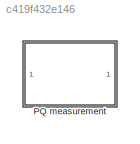
MODEL slx_c419f432e146
KIND model
CONFIG AbsTol = auto
CONFIG EnableMultiTasking = off
CONFIG FixedStep = auto
CONFIG MaxStep = auto
CONFIG MinStep = auto
CONFIG RelTol = 1e-3
CONFIG SampleTimeConstraint = Unconstrained
CONFIG SolverName = VariableStepAuto
CONFIG StartTime = 0.0
CONFIG StopTime = 10.0
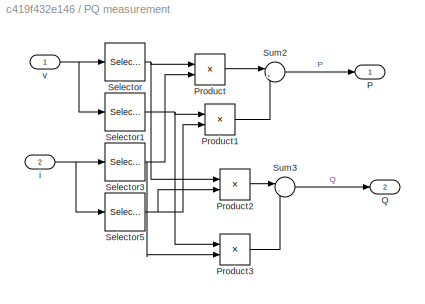
BLOCK [SubSystem] PQ measurement
BLOCK [Outport] PQ measurement/P
BLOCK [Product] PQ measurement/Product
BLOCK [Product] PQ measurement/Product1
BLOCK [Product] PQ measurement/Product2
BLOCK [Product] PQ measurement/Product3
BLOCK [Outport] PQ measurement/Q
  Port = 2
BLOCK [Selector] PQ measurement/Selector
  IndexOptions = Index vector (dialog),Select all
  Indices = 1,1
  InputPortWidth = 3
  NumberOfDimensions = 2
  OutputSizes = 1,1
BLOCK [Selector] PQ measurement/Selector1
  IndexOptions = Index vector (dialog),Select all
  Indices = 2,1
  InputPortWidth = 3
  NumberOfDimensions = 2
  OutputSizes = 1,1
BLOCK [Selector] PQ measurement/Selector3
  IndexOptions = Index vector (dialog),Select all
  Indices = 1,1
  InputPortWidth = 3
  NumberOfDimensions = 2
  OutputSizes = 1,1
BLOCK [Selector] PQ measurement/Selector5
  IndexOptions = Index vector (dialog),Select all
  Indices = 2,1
  InputPortWidth = 3
  NumberOfDimensions = 2
  OutputSizes = 1,1
BLOCK [Sum] PQ measurement/Sum2
  Inputs = |++
BLOCK [Sum] PQ measurement/Sum3
  Inputs = |-+
BLOCK [Inport] PQ measurement/i
  Port = 2
BLOCK [Inport] PQ measurement/v
LINE PQ measurement/Product1:1 -> PQ measurement/Sum2:2
LINE PQ measurement/Product2:1 -> PQ measurement/Sum3:1
LINE PQ measurement/Product3:1 -> PQ measurement/Sum3:2
LINE PQ measurement/Product:1 -> PQ measurement/Sum2:1
NET PQ measurement/Selector1:1 -> PQ measurement/Product1:1, PQ measurement/Product3:1
NET PQ measurement/Selector3:1 -> PQ measurement/Product3:2, PQ measurement/Product:2
NET PQ measurement/Selector5:1 -> PQ measurement/Product1:2, PQ measurement/Product2:2
NET PQ measurement/Selector:1 -> PQ measurement/Product2:1, PQ measurement/Product:1
LINE PQ measurement/Sum2:1 -> PQ measurement/P:1
LINE PQ measurement/Sum3:1 -> PQ measurement/Q:1
NET PQ measurement/i:1 -> PQ measurement/Selector3:1, PQ measurement/Selector5:1
NET PQ measurement/v:1 -> PQ measurement/Selector1:1, PQ measurement/Selector:1
note: NET lines group one-source signal fan-out (src -> all destinations, sorted); 1:1 wires keep LINE
